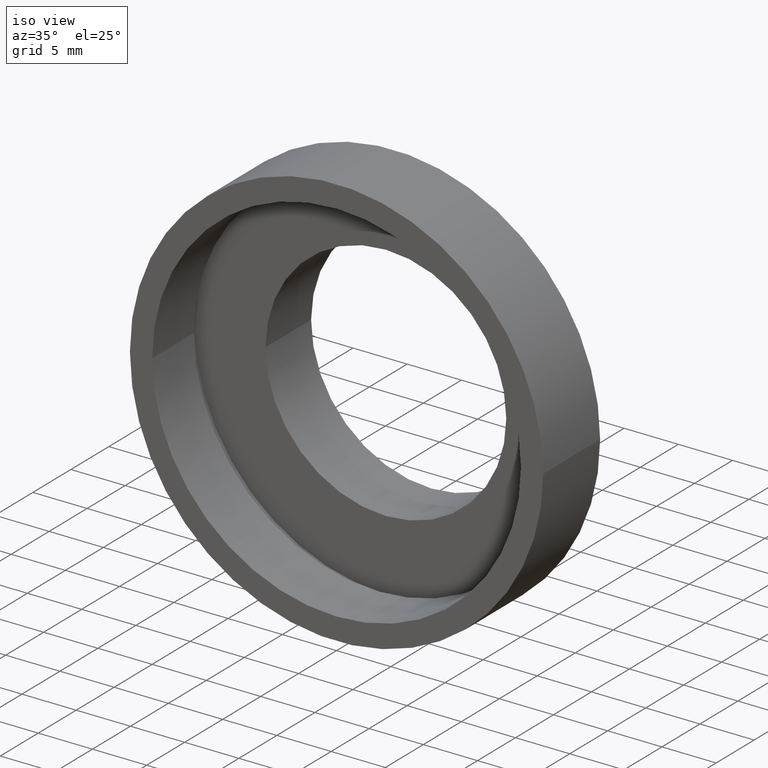
[diagram: clean part render]
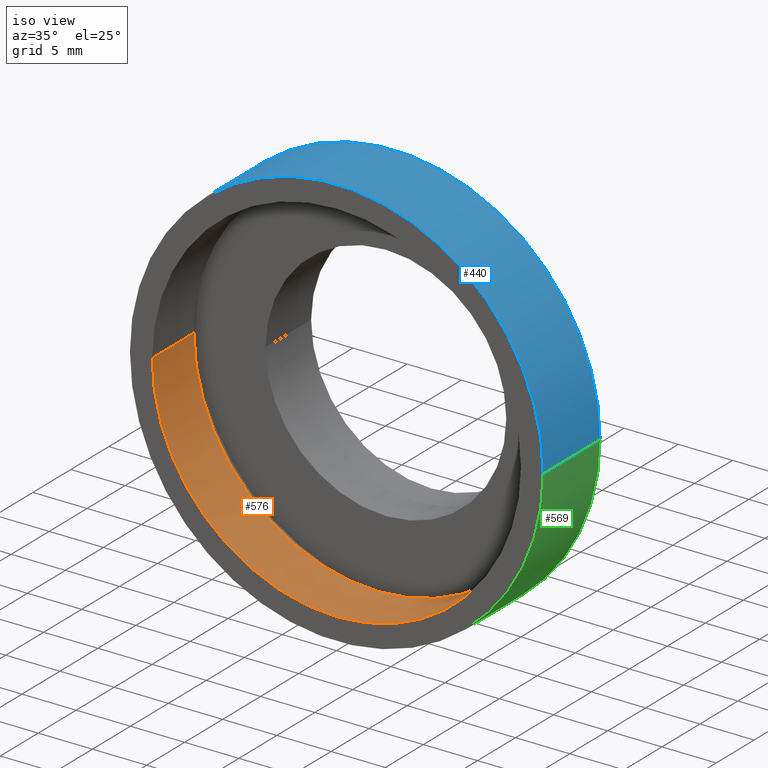
[diagram: same view with three faces highlighted in distinct colors, each labeled with its STEP entity id]
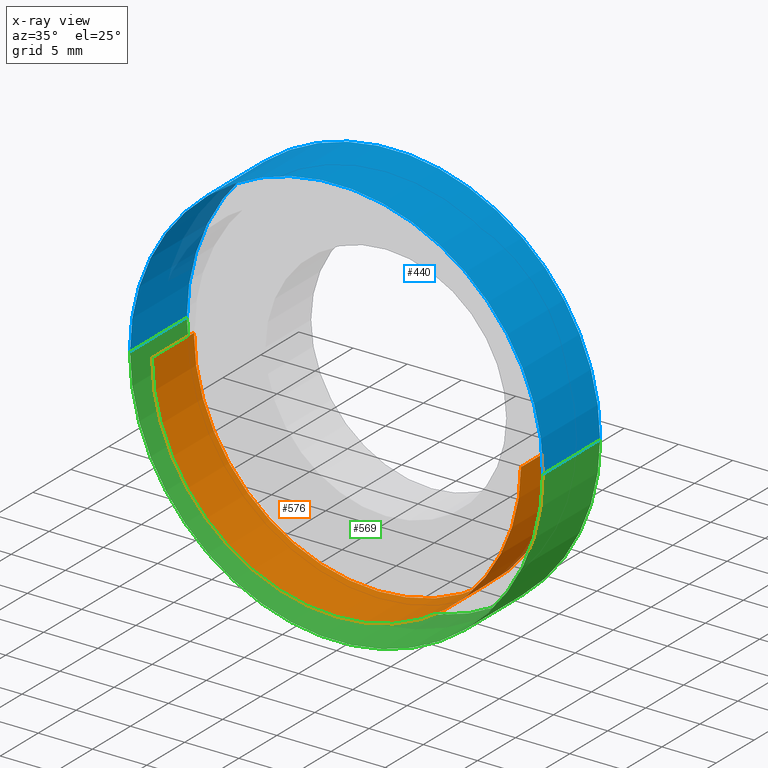
[diagram: x-ray of the same camera — body ghosted, the three highlighted faces saturated]
A machine part, iso view with three faces highlighted in distinct colors.
The next image is the same camera in x-ray (body ghosted, the three faces saturated) — at least one of them is partly hidden behind the body in this view.
Their STEP definitions:

[orange] entity #576 — the highlighted cylindrical surface (partial cylindrical patch) has radius 17 mm, axis along (-0, 1, -0).
#7 = AXIS2_PLACEMENT_3D ( 'NONE', #464, #590, #567 ) ;
#9 = LINE ( 'NONE', #387, #471 ) ;
#13 = CIRCLE ( 'NONE', #619, 17.00000000000000000 ) ;
#17 = CYLINDRICAL_SURFACE ( 'NONE', #7, 17.00000000000000000 ) ;
#24 = CARTESIAN_POINT ( 'NONE',  ( -17.00000000000000000, 16.88601823708207300, 0.0000000000000000000 ) ) ;
#52 = EDGE_CURVE ( 'NONE', #509, #533, #486, .T. ) ;
#76 = EDGE_CURVE ( 'NONE', #100, #278, #9, .T. ) ;
#100 = VERTEX_POINT ( 'NONE', #236 ) ;
#155 = FACE_OUTER_BOUND ( 'NONE', #315, .T. ) ;
#168 = CARTESIAN_POINT ( 'NONE',  ( -17.00000000000000400, 5.499999999999996400, 0.0000000000000000000 ) ) ;
#189 = ORIENTED_EDGE ( 'NONE', *, *, #76, .T. ) ;
#236 = CARTESIAN_POINT ( 'NONE',  ( 17.00000000000000400, -1.387547393403117700E-015, 2.081899558550500700E-015 ) ) ;
#239 = CARTESIAN_POINT ( 'NONE',  ( 2.067940818438636500E-015, -3.469446951953614200E-015, 0.0000000000000000000 ) ) ;
#247 = EDGE_CURVE ( 'NONE', #278, #533, #604, .T. ) ;
#278 = VERTEX_POINT ( 'NONE', #333 ) ;
#313 = ORIENTED_EDGE ( 'NONE', *, *, #52, .F. ) ;
#315 = EDGE_LOOP ( 'NONE', ( #354, #189, #492, #313 ) ) ;
#333 = CARTESIAN_POINT ( 'NONE',  ( 17.00000000000000400, 5.500000000000000000, 2.081899558550500700E-015 ) ) ;
#354 = ORIENTED_EDGE ( 'NONE', *, *, #396, .F. ) ;
#380 = AXIS2_PLACEMENT_3D ( 'NONE', #454, #513, #597 ) ;
#387 = CARTESIAN_POINT ( 'NONE',  ( 17.00000000000000000, 16.88601823708208000, 2.081899558550500300E-015 ) ) ;
#396 = EDGE_CURVE ( 'NONE', #100, #509, #13, .T. ) ;
#416 = DIRECTION ( 'NONE',  ( -1.224646799147351000E-016, 1.000000000000000000, -0.0000000000000000000 ) ) ;
#449 = VECTOR ( 'NONE', #541, 1000.000000000000000 ) ;
#454 = CARTESIAN_POINT ( 'NONE',  ( 1.394385078907593000E-015, 5.499999999999998200, 0.0000000000000000000 ) ) ;
#464 = CARTESIAN_POINT ( 'NONE',  ( 0.0000000000000000000, 16.88601823708207700, 0.0000000000000000000 ) ) ;
#471 = VECTOR ( 'NONE', #416, 1000.000000000000000 ) ;
#486 = LINE ( 'NONE', #24, #449 ) ;
#492 = ORIENTED_EDGE ( 'NONE', *, *, #247, .T. ) ;
#509 = VERTEX_POINT ( 'NONE', #544 ) ;
#513 = DIRECTION ( 'NONE',  ( -1.224646799147351000E-016, 1.000000000000000000, -0.0000000000000000000 ) ) ;
#521 = DIRECTION ( 'NONE',  ( -1.000000000000000000, -1.224646799147351500E-016, 0.0000000000000000000 ) ) ;
#533 = VERTEX_POINT ( 'NONE', #168 ) ;
#537 = DIRECTION ( 'NONE',  ( -1.224646799147351000E-016, 1.000000000000000000, -0.0000000000000000000 ) ) ;
#541 = DIRECTION ( 'NONE',  ( -1.224646799147351000E-016, 1.000000000000000000, -0.0000000000000000000 ) ) ;
#544 = CARTESIAN_POINT ( 'NONE',  ( -16.99999999999999600, -5.551346510504111700E-015, 0.0000000000000000000 ) ) ;
#567 = DIRECTION ( 'NONE',  ( -1.000000000000000000, -2.040851148208008200E-016, 0.0000000000000000000 ) ) ;
#576 = ADVANCED_FACE ( 'NONE', ( #155 ), #17, .F. ) ;
#590 = DIRECTION ( 'NONE',  ( -1.224646799147351000E-016, 1.000000000000000000, -0.0000000000000000000 ) ) ;
#597 = DIRECTION ( 'NONE',  ( -1.000000000000000000, -1.020425574104004000E-016, 0.0000000000000000000 ) ) ;
#604 = CIRCLE ( 'NONE', #380, 17.00000000000000400 ) ;
#619 = AXIS2_PLACEMENT_3D ( 'NONE', #239, #537, #521 ) ;

[blue] entity #440 — the highlighted cylindrical surface (partial cylindrical patch) has radius 19.05 mm, axis along (-0, 1, -0).
#34 = DIRECTION ( 'NONE',  ( -1.224646799147351000E-016, 1.000000000000000000, -0.0000000000000000000 ) ) ;
#79 = CARTESIAN_POINT ( 'NONE',  ( 2.067940818438636500E-015, -3.469446951953614200E-015, 0.0000000000000000000 ) ) ;
#104 = LINE ( 'NONE', #139, #179 ) ;
#105 = AXIS2_PLACEMENT_3D ( 'NONE', #129, #410, #493 ) ;
#115 = ORIENTED_EDGE ( 'NONE', *, *, #174, .T. ) ;
#129 = CARTESIAN_POINT ( 'NONE',  ( 1.149455719078122700E-015, 7.499999999999998200, 0.0000000000000000000 ) ) ;
#139 = CARTESIAN_POINT ( 'NONE',  ( -19.04999999999999700, 16.88601823708207300, 0.0000000000000000000 ) ) ;
#145 = EDGE_LOOP ( 'NONE', ( #115, #369, #598, #148 ) ) ;
#147 = CARTESIAN_POINT ( 'NONE',  ( 19.04999999999999700, 16.88601823708208000, 2.332952152375707300E-015 ) ) ;
#148 = ORIENTED_EDGE ( 'NONE', *, *, #566, .F. ) ;
#154 = DIRECTION ( 'NONE',  ( -1.224646799147351000E-016, 1.000000000000000000, -0.0000000000000000000 ) ) ;
#169 = CARTESIAN_POINT ( 'NONE',  ( -19.05000000000000100, 7.499999999999995600, 0.0000000000000000000 ) ) ;
#174 = EDGE_CURVE ( 'NONE', #535, #303, #399, .T. ) ;
#179 = VECTOR ( 'NONE', #34, 1000.000000000000000 ) ;
#237 = EDGE_CURVE ( 'NONE', #303, #479, #613, .T. ) ;
#265 = CYLINDRICAL_SURFACE ( 'NONE', #526, 19.04999999999999700 ) ;
#271 = CARTESIAN_POINT ( 'NONE',  ( 19.05000000000000100, 7.500000000000000900, 2.332952152375707600E-015 ) ) ;
#283 = DIRECTION ( 'NONE',  ( -1.224646799147351000E-016, 1.000000000000000000, -0.0000000000000000000 ) ) ;
#303 = VERTEX_POINT ( 'NONE', #318 ) ;
#318 = CARTESIAN_POINT ( 'NONE',  ( 19.05000000000000100, -1.136494799577911100E-015, 2.332952152375707600E-015 ) ) ;
#362 = DIRECTION ( 'NONE',  ( -1.224646799147351000E-016, 1.000000000000000000, -0.0000000000000000000 ) ) ;
#369 = ORIENTED_EDGE ( 'NONE', *, *, #237, .T. ) ;
#399 = CIRCLE ( 'NONE', #487, 19.04999999999999700 ) ;
#410 = DIRECTION ( 'NONE',  ( -1.224646799147351000E-016, 1.000000000000000000, -0.0000000000000000000 ) ) ;
#440 = ADVANCED_FACE ( 'NONE', ( #570 ), #265, .T. ) ;
#451 = CARTESIAN_POINT ( 'NONE',  ( 0.0000000000000000000, 16.88601823708207700, 0.0000000000000000000 ) ) ;
#470 = DIRECTION ( 'NONE',  ( -1.000000000000000000, -1.821231995776175700E-016, 0.0000000000000000000 ) ) ;
#475 = VECTOR ( 'NONE', #362, 1000.000000000000000 ) ;
#479 = VERTEX_POINT ( 'NONE', #271 ) ;
#481 = VERTEX_POINT ( 'NONE', #169 ) ;
#487 = AXIS2_PLACEMENT_3D ( 'NONE', #79, #283, #553 ) ;
#493 = DIRECTION ( 'NONE',  ( -1.000000000000000000, -1.365923996832131600E-016, 0.0000000000000000000 ) ) ;
#498 = EDGE_CURVE ( 'NONE', #481, #479, #520, .T. ) ;
#520 = CIRCLE ( 'NONE', #105, 19.05000000000000100 ) ;
#526 = AXIS2_PLACEMENT_3D ( 'NONE', #451, #154, #470 ) ;
#535 = VERTEX_POINT ( 'NONE', #551 ) ;
#551 = CARTESIAN_POINT ( 'NONE',  ( -19.04999999999999400, -5.802399104329317500E-015, 0.0000000000000000000 ) ) ;
#553 = DIRECTION ( 'NONE',  ( -1.000000000000000000, -1.224646799147351000E-016, 0.0000000000000000000 ) ) ;
#566 = EDGE_CURVE ( 'NONE', #535, #481, #104, .T. ) ;
#570 = FACE_OUTER_BOUND ( 'NONE', #145, .T. ) ;
#598 = ORIENTED_EDGE ( 'NONE', *, *, #498, .F. ) ;
#613 = LINE ( 'NONE', #147, #475 ) ;

[green] entity #569 — the highlighted cylindrical surface (partial cylindrical patch) has radius 19.05 mm, axis along (-0, 1, -0).
#1 = ORIENTED_EDGE ( 'NONE', *, *, #237, .F. ) ;
#34 = DIRECTION ( 'NONE',  ( -1.224646799147351000E-016, 1.000000000000000000, -0.0000000000000000000 ) ) ;
#45 = AXIS2_PLACEMENT_3D ( 'NONE', #485, #230, #616 ) ;
#87 = ORIENTED_EDGE ( 'NONE', *, *, #205, .F. ) ;
#94 = DIRECTION ( 'NONE',  ( -1.000000000000000000, -1.365923996832131600E-016, 0.0000000000000000000 ) ) ;
#104 = LINE ( 'NONE', #139, #179 ) ;
#113 = CARTESIAN_POINT ( 'NONE',  ( 1.149455719078122700E-015, 7.499999999999998200, 0.0000000000000000000 ) ) ;
#133 = FACE_OUTER_BOUND ( 'NONE', #622, .T. ) ;
#139 = CARTESIAN_POINT ( 'NONE',  ( -19.04999999999999700, 16.88601823708207300, 0.0000000000000000000 ) ) ;
#143 = CYLINDRICAL_SURFACE ( 'NONE', #45, 19.04999999999999700 ) ;
#147 = CARTESIAN_POINT ( 'NONE',  ( 19.04999999999999700, 16.88601823708208000, 2.332952152375707300E-015 ) ) ;
#169 = CARTESIAN_POINT ( 'NONE',  ( -19.05000000000000100, 7.499999999999995600, 0.0000000000000000000 ) ) ;
#179 = VECTOR ( 'NONE', #34, 1000.000000000000000 ) ;
#205 = EDGE_CURVE ( 'NONE', #479, #481, #338, .T. ) ;
#230 = DIRECTION ( 'NONE',  ( -1.224646799147351000E-016, 1.000000000000000000, -0.0000000000000000000 ) ) ;
#237 = EDGE_CURVE ( 'NONE', #303, #479, #613, .T. ) ;
#271 = CARTESIAN_POINT ( 'NONE',  ( 19.05000000000000100, 7.500000000000000900, 2.332952152375707600E-015 ) ) ;
#281 = AXIS2_PLACEMENT_3D ( 'NONE', #363, #346, #366 ) ;
#303 = VERTEX_POINT ( 'NONE', #318 ) ;
#318 = CARTESIAN_POINT ( 'NONE',  ( 19.05000000000000100, -1.136494799577911100E-015, 2.332952152375707600E-015 ) ) ;
#336 = DIRECTION ( 'NONE',  ( -1.224646799147351000E-016, 1.000000000000000000, -0.0000000000000000000 ) ) ;
#338 = CIRCLE ( 'NONE', #609, 19.05000000000000100 ) ;
#346 = DIRECTION ( 'NONE',  ( -1.224646799147351000E-016, 1.000000000000000000, -0.0000000000000000000 ) ) ;
#362 = DIRECTION ( 'NONE',  ( -1.224646799147351000E-016, 1.000000000000000000, -0.0000000000000000000 ) ) ;
#363 = CARTESIAN_POINT ( 'NONE',  ( 2.067940818438636500E-015, -3.469446951953614200E-015, 0.0000000000000000000 ) ) ;
#366 = DIRECTION ( 'NONE',  ( -1.000000000000000000, -1.224646799147351000E-016, 0.0000000000000000000 ) ) ;
#389 = ORIENTED_EDGE ( 'NONE', *, *, #566, .T. ) ;
#405 = ORIENTED_EDGE ( 'NONE', *, *, #530, .T. ) ;
#408 = CIRCLE ( 'NONE', #281, 19.04999999999999700 ) ;
#475 = VECTOR ( 'NONE', #362, 1000.000000000000000 ) ;
#479 = VERTEX_POINT ( 'NONE', #271 ) ;
#481 = VERTEX_POINT ( 'NONE', #169 ) ;
#485 = CARTESIAN_POINT ( 'NONE',  ( 0.0000000000000000000, 16.88601823708207700, 0.0000000000000000000 ) ) ;
#530 = EDGE_CURVE ( 'NONE', #303, #535, #408, .T. ) ;
#535 = VERTEX_POINT ( 'NONE', #551 ) ;
#551 = CARTESIAN_POINT ( 'NONE',  ( -19.04999999999999400, -5.802399104329317500E-015, 0.0000000000000000000 ) ) ;
#566 = EDGE_CURVE ( 'NONE', #535, #481, #104, .T. ) ;
#569 = ADVANCED_FACE ( 'NONE', ( #133 ), #143, .T. ) ;
#609 = AXIS2_PLACEMENT_3D ( 'NONE', #113, #336, #94 ) ;
#613 = LINE ( 'NONE', #147, #475 ) ;
#616 = DIRECTION ( 'NONE',  ( -1.000000000000000000, -1.821231995776175700E-016, 0.0000000000000000000 ) ) ;
#622 = EDGE_LOOP ( 'NONE', ( #1, #405, #389, #87 ) ) ;